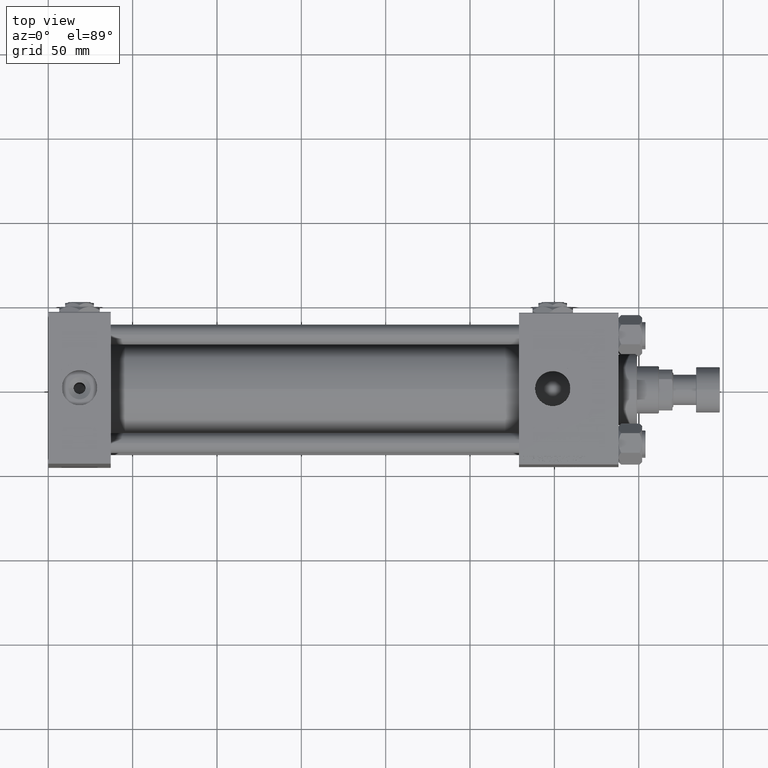
[diagram: clean part render]
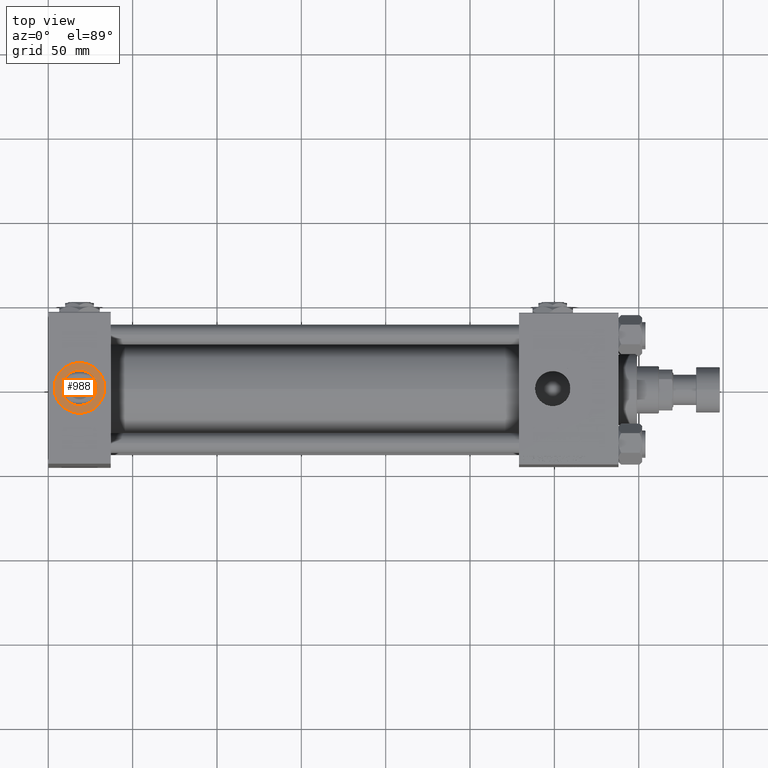
[diagram: same view with one face highlighted and labeled with its STEP entity id]
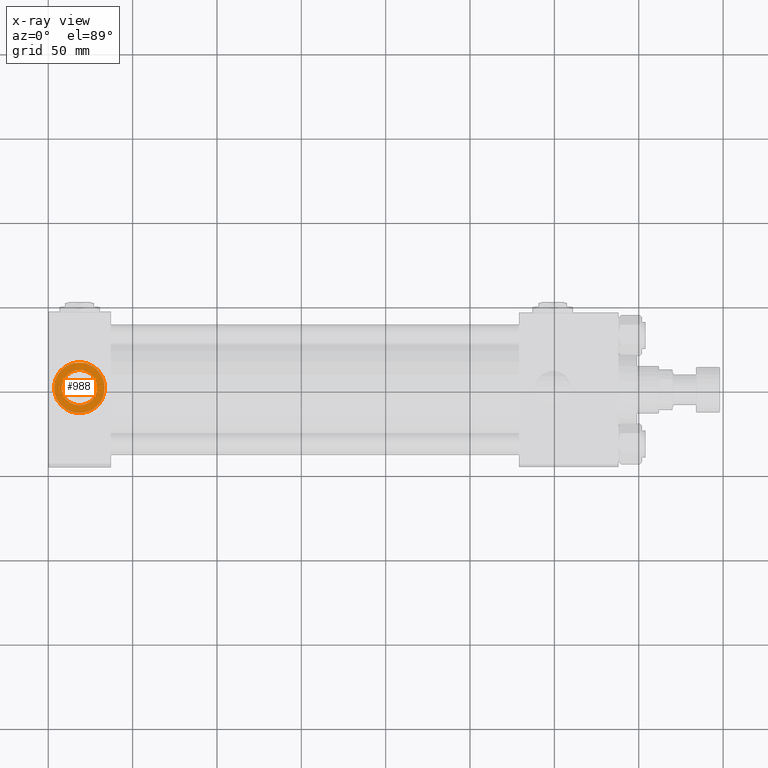
[diagram: x-ray of the same camera — body ghosted, the highlighted face saturated]
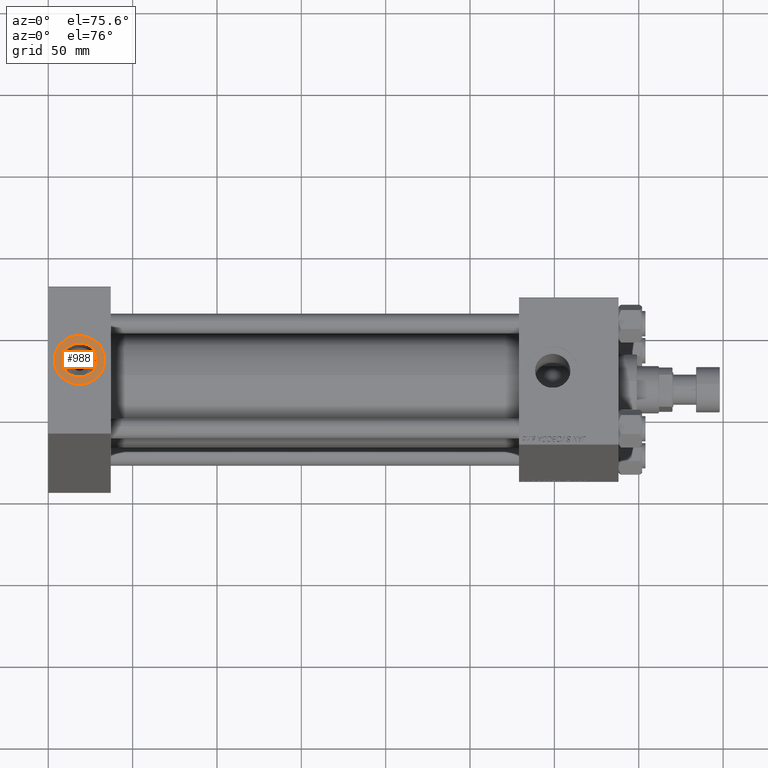
[diagram: same view with one face highlighted and labeled with its STEP entity id]
A machine part, top view. The second image highlights one B-rep face of the part: STEP entity #988.
The next image is the same camera in x-ray: the body ghosted, the highlighted face saturated — about 0% of this face is hidden behind the body in this view.
A second angle (auxiliary view) of the same face is appended — the face is thin or edge-on in the first view.
In plain terms, the highlighted planar face has unit normal (0, 0, 1).
Its self-contained STEP definition (entity closure, byte-faithful):
#272 = CIRCLE ( 'NONE', #29943, 15.00000000000000355 ) ;
#988 = ADVANCED_FACE ( 'NONE', ( #31283, #42485 ), #3146, .T. ) ;
#1270 = CIRCLE ( 'NONE', #19911, 10.48000000000000043 ) ;
#2373 = CARTESIAN_POINT ( 'NONE',  ( 18.50000000000000000, -1.268275607991932333E-14, 70.79999999999996874 ) ) ;
#2890 = EDGE_CURVE ( 'NONE', #3205, #39710, #1270, .T. ) ;
#3146 = PLANE ( 'NONE',  #7091 ) ;
#3205 = VERTEX_POINT ( 'NONE', #37841 ) ;
#3487 = EDGE_CURVE ( 'NONE', #34726, #46171, #47109, .T. ) ;
#5802 = CIRCLE ( 'NONE', #15120, 10.48000000000000043 ) ;
#7091 = AXIS2_PLACEMENT_3D ( 'NONE', #2373, #10837, #47527 ) ;
#7507 = DIRECTION ( 'NONE',  ( 0.000000000000000000, 0.000000000000000000, 1.000000000000000000 ) ) ;
#10113 = ORIENTED_EDGE ( 'NONE', *, *, #43169, .T. ) ;
#10837 = DIRECTION ( 'NONE',  ( 0.000000000000000000, 0.000000000000000000, 1.000000000000000000 ) ) ;
#12048 = CARTESIAN_POINT ( 'NONE',  ( 3.499999999999997780, -1.084578588119829295E-14, 70.79999999999996874 ) ) ;
#14097 = EDGE_CURVE ( 'NONE', #39710, #3205, #5802, .T. ) ;
#15120 = AXIS2_PLACEMENT_3D ( 'NONE', #40971, #25287, #17318 ) ;
#15421 = DIRECTION ( 'NONE',  ( 1.000000000000000000, 0.000000000000000000, 0.000000000000000000 ) ) ;
#16341 = CARTESIAN_POINT ( 'NONE',  ( 33.50000000000000000, -1.268275607991932333E-14, 70.79999999999996874 ) ) ;
#17318 = DIRECTION ( 'NONE',  ( 1.000000000000000000, 0.000000000000000000, 0.000000000000000000 ) ) ;
#19415 = DIRECTION ( 'NONE',  ( 0.000000000000000000, 0.000000000000000000, 1.000000000000000000 ) ) ;
#19911 = AXIS2_PLACEMENT_3D ( 'NONE', #31276, #34492, #22804 ) ;
#22804 = DIRECTION ( 'NONE',  ( 1.000000000000000000, 0.000000000000000000, 0.000000000000000000 ) ) ;
#23714 = DIRECTION ( 'NONE',  ( 1.000000000000000000, 0.000000000000000000, 0.000000000000000000 ) ) ;
#23860 = EDGE_LOOP ( 'NONE', ( #45952, #25652 ) ) ;
#25287 = DIRECTION ( 'NONE',  ( 0.000000000000000000, 0.000000000000000000, 1.000000000000000000 ) ) ;
#25652 = ORIENTED_EDGE ( 'NONE', *, *, #14097, .F. ) ;
#27560 = AXIS2_PLACEMENT_3D ( 'NONE', #43925, #7507, #23714 ) ;
#27720 = EDGE_LOOP ( 'NONE', ( #47893, #10113 ) ) ;
#29943 = AXIS2_PLACEMENT_3D ( 'NONE', #36138, #19415, #15421 ) ;
#30424 = CARTESIAN_POINT ( 'NONE',  ( 8.019999999999999574, -1.139932623441289626E-14, 70.79999999999996874 ) ) ;
#31276 = CARTESIAN_POINT ( 'NONE',  ( 18.50000000000000000, -1.268275607991932333E-14, 70.79999999999996874 ) ) ;
#31283 = FACE_BOUND ( 'NONE', #23860, .T. ) ;
#34492 = DIRECTION ( 'NONE',  ( 0.000000000000000000, 0.000000000000000000, 1.000000000000000000 ) ) ;
#34726 = VERTEX_POINT ( 'NONE', #16341 ) ;
#36138 = CARTESIAN_POINT ( 'NONE',  ( 18.50000000000000000, -1.268275607991932333E-14, 70.79999999999996874 ) ) ;
#37841 = CARTESIAN_POINT ( 'NONE',  ( 28.98000000000000043, -1.268275607991932333E-14, 70.79999999999996874 ) ) ;
#39710 = VERTEX_POINT ( 'NONE', #30424 ) ;
#40971 = CARTESIAN_POINT ( 'NONE',  ( 18.50000000000000000, -1.268275607991932333E-14, 70.79999999999996874 ) ) ;
#42485 = FACE_OUTER_BOUND ( 'NONE', #27720, .T. ) ;
#43169 = EDGE_CURVE ( 'NONE', #46171, #34726, #272, .T. ) ;
#43925 = CARTESIAN_POINT ( 'NONE',  ( 18.50000000000000000, -1.268275607991932333E-14, 70.79999999999996874 ) ) ;
#45952 = ORIENTED_EDGE ( 'NONE', *, *, #2890, .F. ) ;
#46171 = VERTEX_POINT ( 'NONE', #12048 ) ;
#47109 = CIRCLE ( 'NONE', #27560, 15.00000000000000355 ) ;
#47527 = DIRECTION ( 'NONE',  ( 1.000000000000000000, 0.000000000000000000, -0.000000000000000000 ) ) ;
#47893 = ORIENTED_EDGE ( 'NONE', *, *, #3487, .T. ) ;